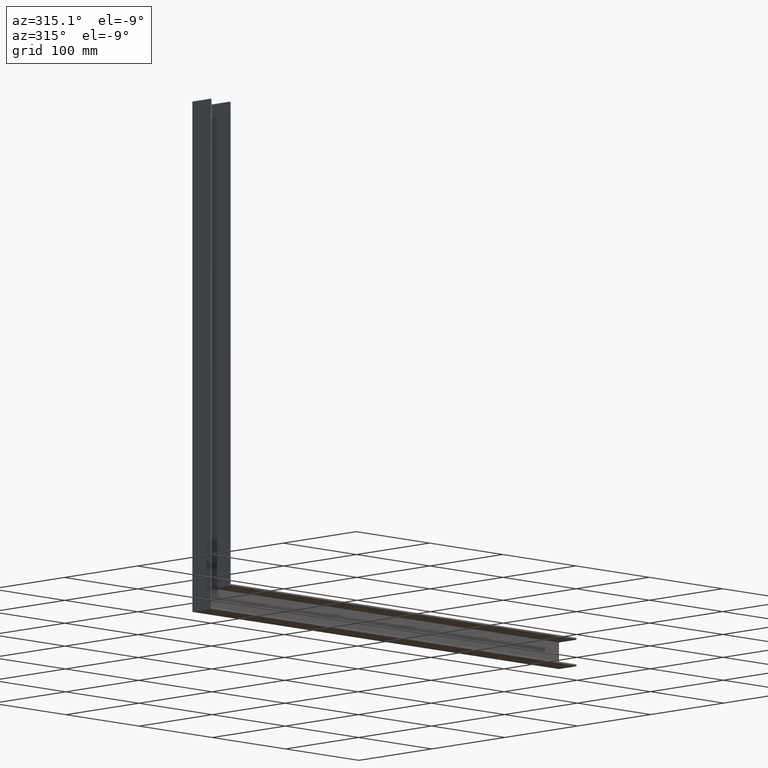
[diagram: clean part render]
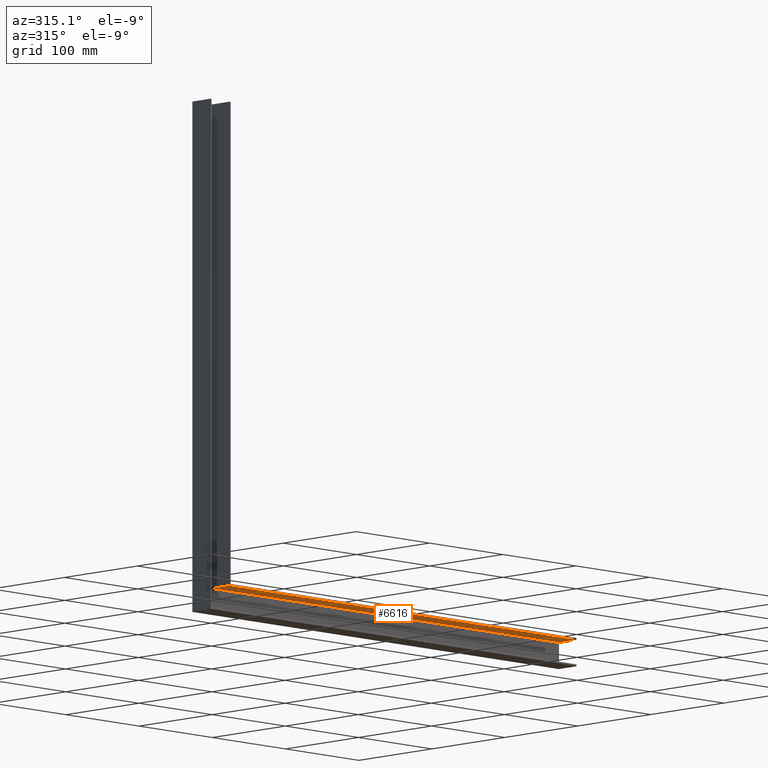
[diagram: same view with one face highlighted and labeled with its STEP entity id]
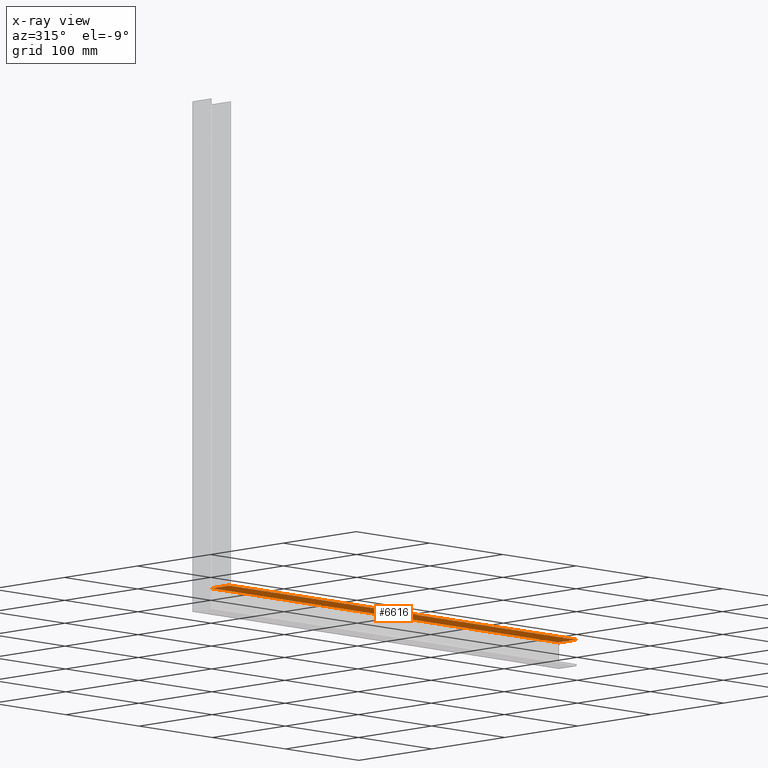
[diagram: x-ray of the same camera — body ghosted, the highlighted face saturated]
A machine part, auxiliary view. The second image highlights one B-rep face of the part: STEP entity #6616.
The next image is the same camera in x-ray: the body ghosted, the highlighted face saturated — about 0% of this face is hidden behind the body in this view.
In plain terms, the highlighted planar face has unit normal (-0, 0, 1).
Its self-contained STEP definition (entity closure, byte-faithful):
#331 = ORIENTED_EDGE ( 'NONE', *, *, #11465, .T. ) ;
#1350 = EDGE_CURVE ( 'NONE', #13527, #3591, #15010, .T. ) ;
#2612 = CARTESIAN_POINT ( 'NONE',  ( -15.50000000000001421, 11.00000000000000000, -474.0000000000000000 ) ) ;
#3408 = ORIENTED_EDGE ( 'NONE', *, *, #5842, .T. ) ;
#3591 = VERTEX_POINT ( 'NONE', #7333 ) ;
#4461 = CARTESIAN_POINT ( 'NONE',  ( -15.50000000000001421, 11.00000000000000000, -474.0000000000000000 ) ) ;
#5037 = EDGE_LOOP ( 'NONE', ( #331, #6360, #3408, #14183 ) ) ;
#5842 = EDGE_CURVE ( 'NONE', #15198, #3591, #16555, .T. ) ;
#6360 = ORIENTED_EDGE ( 'NONE', *, *, #15024, .T. ) ;
#6404 = CARTESIAN_POINT ( 'NONE',  ( 12.00000000000000711, -12.49999999999999289, -474.0000000000000000 ) ) ;
#6534 = VECTOR ( 'NONE', #13621, 1000.000000000000000 ) ;
#6616 = ADVANCED_FACE ( 'NONE', ( #6967 ), #9660, .F. ) ;
#6967 = FACE_OUTER_BOUND ( 'NONE', #5037, .T. ) ;
#7227 = CARTESIAN_POINT ( 'NONE',  ( 12.00000000000000000, 10.99999999999996447, -473.9999999999999432 ) ) ;
#7333 = CARTESIAN_POINT ( 'NONE',  ( 486.0000000000000000, -12.49999999999999289, -474.0000000000000000 ) ) ;
#8270 = CARTESIAN_POINT ( 'NONE',  ( -15.50000000000001421, -12.49999999999999289, -474.0000000000000000 ) ) ;
#8631 = DIRECTION ( 'NONE',  ( 0.000000000000000000, -1.000000000000000000, 7.381802025433224012E-17 ) ) ;
#9660 = PLANE ( 'NONE',  #11147 ) ;
#9894 = LINE ( 'NONE', #2612, #16068 ) ;
#11147 = AXIS2_PLACEMENT_3D ( 'NONE', #4461, #11278, #8631 ) ;
#11278 = DIRECTION ( 'NONE',  ( -0.000000000000000000, 7.381802025433224012E-17, 1.000000000000000000 ) ) ;
#11399 = CARTESIAN_POINT ( 'NONE',  ( 486.0000000000000000, 11.00000000000000000, -474.0000000000000000 ) ) ;
#11465 = EDGE_CURVE ( 'NONE', #13527, #15074, #16133, .T. ) ;
#13134 = VECTOR ( 'NONE', #14056, 1000.000000000000000 ) ;
#13527 = VERTEX_POINT ( 'NONE', #6404 ) ;
#13621 = DIRECTION ( 'NONE',  ( 4.520050111193122959E-33, -1.000000000000000000, 7.381802025433224012E-17 ) ) ;
#13673 = CARTESIAN_POINT ( 'NONE',  ( 486.0000000000000000, 11.00000000000000000, -474.0000000000000000 ) ) ;
#13881 = CARTESIAN_POINT ( 'NONE',  ( 12.00000000000000000, 11.00000000000000000, -473.9999999999999432 ) ) ;
#14056 = DIRECTION ( 'NONE',  ( -7.381802025433222780E-17, 1.000000000000000000, -7.381802025433222780E-17 ) ) ;
#14183 = ORIENTED_EDGE ( 'NONE', *, *, #1350, .F. ) ;
#15010 = LINE ( 'NONE', #8270, #16297 ) ;
#15024 = EDGE_CURVE ( 'NONE', #15074, #15198, #9894, .T. ) ;
#15057 = DIRECTION ( 'NONE',  ( 1.000000000000000000, 0.000000000000000000, 0.000000000000000000 ) ) ;
#15074 = VERTEX_POINT ( 'NONE', #13881 ) ;
#15194 = DIRECTION ( 'NONE',  ( 1.000000000000000000, 0.000000000000000000, 0.000000000000000000 ) ) ;
#15198 = VERTEX_POINT ( 'NONE', #11399 ) ;
#16068 = VECTOR ( 'NONE', #15194, 1000.000000000000000 ) ;
#16133 = LINE ( 'NONE', #7227, #13134 ) ;
#16297 = VECTOR ( 'NONE', #15057, 1000.000000000000000 ) ;
#16555 = LINE ( 'NONE', #13673, #6534 ) ;